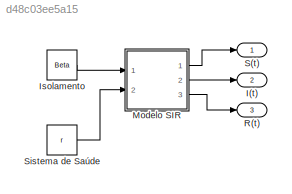
MODEL slx_d48c03ee5a15
KIND model
CONFIG AbsTol = auto
CONFIG EnableMultiTasking = off
CONFIG FixedStep = auto
CONFIG MaxStep = 1
CONFIG MinStep = auto
CONFIG RelTol = 1e-3
CONFIG SampleTimeConstraint = Unconstrained
CONFIG SolverName = VariableStepAuto
CONFIG StartTime = 0.0
CONFIG StopTime = 1000.0
BLOCK [Outport] I(t)
  Port = 2
BLOCK [Constant] Isolamento
  Value = Beta
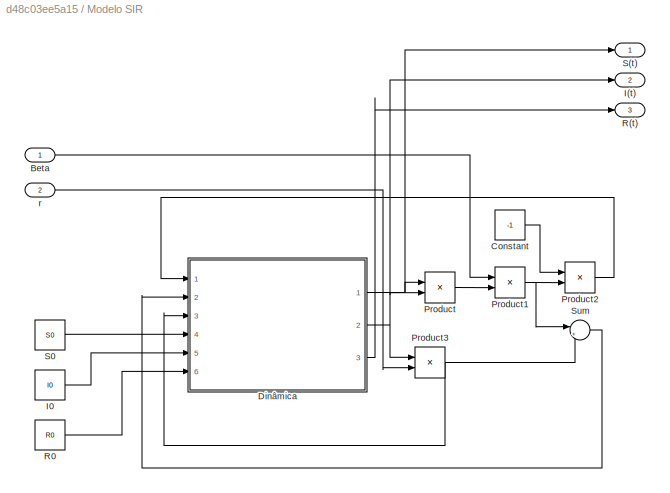
BLOCK [SubSystem] Modelo SIR
  Ports = [2, 3]
  RequestExecContextInheritance = off
BLOCK [Inport] Modelo SIR/Beta
BLOCK [Constant] Modelo SIR/Constant
  Value = -1
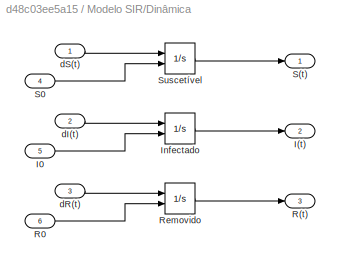
BLOCK [SubSystem] Modelo SIR/Dinâmica
  Ports = [6, 3]
  RequestExecContextInheritance = off
BLOCK [Outport] Modelo SIR/Dinâmica/I(t)
  Port = 2
BLOCK [Inport] Modelo SIR/Dinâmica/I0
  Port = 5
BLOCK [Integrator] Modelo SIR/Dinâmica/Infectado
  InitialConditionSource = external
  Ports = [2, 1]
BLOCK [Outport] Modelo SIR/Dinâmica/R(t)
  Port = 3
BLOCK [Inport] Modelo SIR/Dinâmica/R0
  Port = 6
BLOCK [Integrator] Modelo SIR/Dinâmica/Removido
  InitialConditionSource = external
  Ports = [2, 1]
BLOCK [Outport] Modelo SIR/Dinâmica/S(t)
BLOCK [Inport] Modelo SIR/Dinâmica/S0
  Port = 4
BLOCK [Integrator] Modelo SIR/Dinâmica/Suscetível
  InitialConditionSource = external
  Ports = [2, 1]
BLOCK [Inport] Modelo SIR/Dinâmica/dI(t)
  Port = 2
BLOCK [Inport] Modelo SIR/Dinâmica/dR(t)
  Port = 3
BLOCK [Inport] Modelo SIR/Dinâmica/dS(t)
BLOCK [Outport] Modelo SIR/I(t)
  Port = 2
BLOCK [Constant] Modelo SIR/I0
  Value = I0
BLOCK [Product] Modelo SIR/Product
  Ports = [2, 1]
BLOCK [Product] Modelo SIR/Product1
  Ports = [2, 1]
BLOCK [Product] Modelo SIR/Product2
  Ports = [2, 1]
BLOCK [Product] Modelo SIR/Product3
  Ports = [2, 1]
BLOCK [Outport] Modelo SIR/R(t)
  Port = 3
BLOCK [Constant] Modelo SIR/R0
  Value = R0
BLOCK [Outport] Modelo SIR/S(t)
BLOCK [Constant] Modelo SIR/S0
  Value = S0
BLOCK [Sum] Modelo SIR/Sum
  Inputs = |+-
  Ports = [2, 1]
BLOCK [Inport] Modelo SIR/r
  Port = 2
BLOCK [Outport] R(t)
  Port = 3
BLOCK [Outport] S(t)
BLOCK [Constant] Sistema de Saúde
  Value = r
LINE Isolamento:1 -> Modelo SIR:1
LINE Modelo SIR/Beta:1 -> Modelo SIR/Product1:1
LINE Modelo SIR/Constant:1 -> Modelo SIR/Product2:1
LINE Modelo SIR/Dinâmica/I0:1 -> Modelo SIR/Dinâmica/Infectado:2
LINE Modelo SIR/Dinâmica/Infectado:1 -> Modelo SIR/Dinâmica/I(t):1
LINE Modelo SIR/Dinâmica/R0:1 -> Modelo SIR/Dinâmica/Removido:2
LINE Modelo SIR/Dinâmica/Removido:1 -> Modelo SIR/Dinâmica/R(t):1
LINE Modelo SIR/Dinâmica/S0:1 -> Modelo SIR/Dinâmica/Suscetível:2
LINE Modelo SIR/Dinâmica/Suscetível:1 -> Modelo SIR/Dinâmica/S(t):1
LINE Modelo SIR/Dinâmica/dI(t):1 -> Modelo SIR/Dinâmica/Infectado:1
LINE Modelo SIR/Dinâmica/dR(t):1 -> Modelo SIR/Dinâmica/Removido:1
LINE Modelo SIR/Dinâmica/dS(t):1 -> Modelo SIR/Dinâmica/Suscetível:1
NET Modelo SIR/Dinâmica:1 -> Modelo SIR/Product:1, Modelo SIR/S(t):1
NET Modelo SIR/Dinâmica:2 -> Modelo SIR/I(t):1, Modelo SIR/Product3:1, Modelo SIR/Product:2
LINE Modelo SIR/Dinâmica:3 -> Modelo SIR/R(t):1
LINE Modelo SIR/I0:1 -> Modelo SIR/Dinâmica:5
NET Modelo SIR/Product1:1 -> Modelo SIR/Product2:2, Modelo SIR/Sum:1
LINE Modelo SIR/Product2:1 -> Modelo SIR/Dinâmica:1
NET Modelo SIR/Product3:1 -> Modelo SIR/Dinâmica:3, Modelo SIR/Sum:2
LINE Modelo SIR/Product:1 -> Modelo SIR/Product1:2
LINE Modelo SIR/R0:1 -> Modelo SIR/Dinâmica:6
LINE Modelo SIR/S0:1 -> Modelo SIR/Dinâmica:4
LINE Modelo SIR/Sum:1 -> Modelo SIR/Dinâmica:2
LINE Modelo SIR/r:1 -> Modelo SIR/Product3:2
LINE Modelo SIR:1 -> S(t):1
LINE Modelo SIR:2 -> I(t):1
LINE Modelo SIR:3 -> R(t):1
LINE Sistema de Saúde:1 -> Modelo SIR:2
note: NET lines group one-source signal fan-out (src -> all destinations, sorted); 1:1 wires keep LINE
